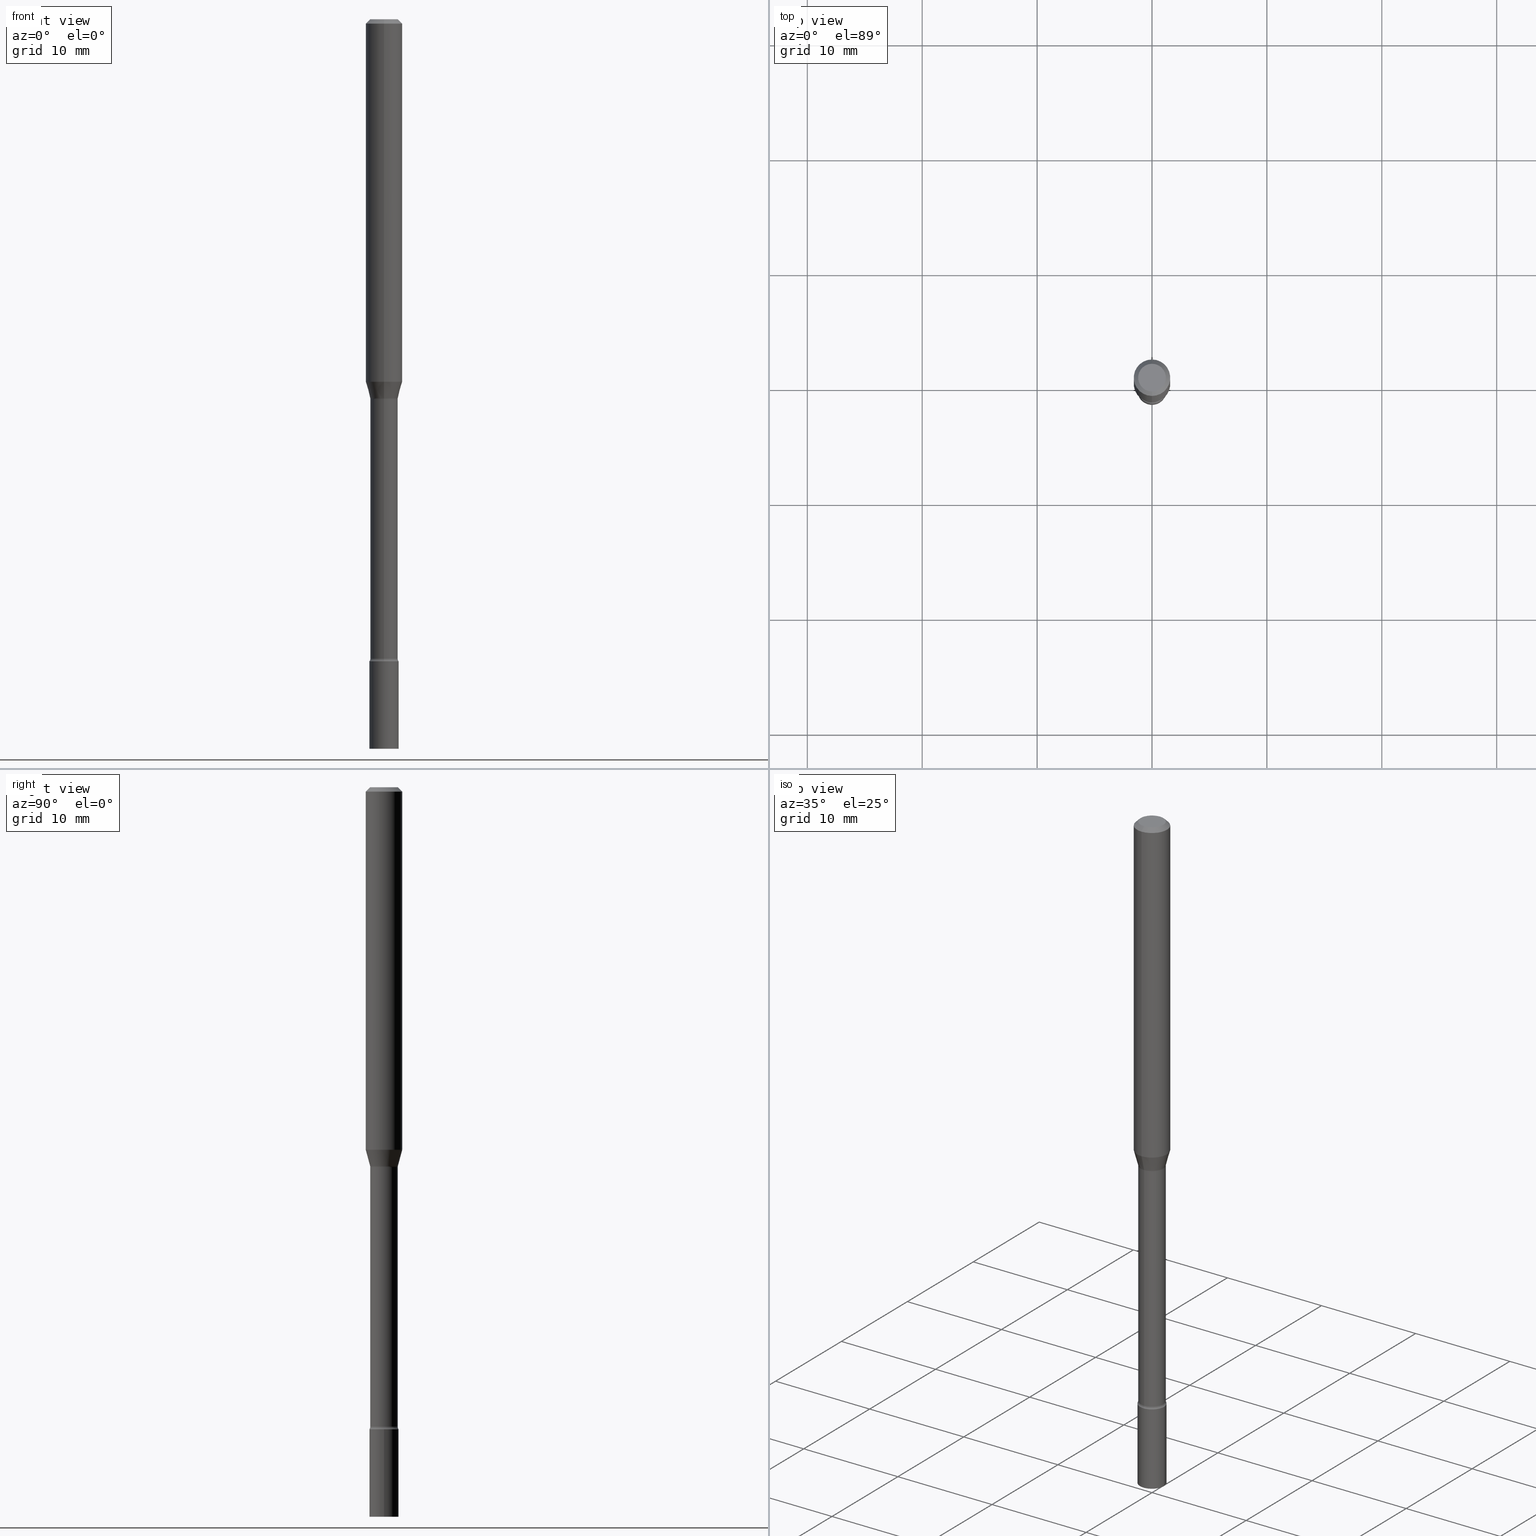
[diagram: canonical four-view strip — front | top / right | iso, engineering-drawing reading convention]
A machine part, canonical four-view strip (front | top / right | iso — engineering-drawing reading convention). The complete STEP part file that produces these views, byte-faithful:
ISO-10303-21;
HEADER;
FILE_DESCRIPTION (( 'STEP AP203' ),
    '1' );
FILE_NAME ('09398.STEP',
    '2024-03-08T23:42:25',
    ( '' ),
    ( '' ),
    'SwSTEP 2.0',
    'SolidWorks 2023',
    '' );
FILE_SCHEMA (( 'CONFIG_CONTROL_DESIGN' ));
ENDSEC;

DATA;
#1 = VECTOR ( 'NONE', #120, 39.37007874015748143 ) ;
#2 = VECTOR ( 'NONE', #169, 39.37007874015748143 ) ;
#3 = ORIENTED_EDGE ( 'NONE', *, *, #341, .F. ) ;
#4 = ADVANCED_FACE ( 'NONE', ( #161 ), #322, .T. ) ;
#5 = DIRECTION ( 'NONE',  ( -2.445406177235951099E-29, 3.491571027062997354E-15, 1.000000000000000000 ) ) ;
#6 = DIRECTION ( 'NONE',  ( -6.982962677686265133E-15, -1.000000000000000000, 5.463695987328526437E-15 ) ) ;
#7 = VERTEX_POINT ( 'NONE', #52 ) ;
#8 = CYLINDRICAL_SURFACE ( 'NONE', #81, 0.04700000000000005562 ) ;
#9 = ADVANCED_BREP_SHAPE_REPRESENTATION ( '09398', ( #237, #404, #298 ), #396 ) ;
#10 = DIRECTION ( 'NONE',  ( -6.982962677686265133E-15, -1.000000000000000000, 5.463695987328526437E-15 ) ) ;
#11 = CARTESIAN_POINT ( 'NONE',  ( 0.000000000000000000, 0.000000000000000000, 0.000000000000000000 ) ) ;
#12 = ADVANCED_FACE ( 'NONE', ( #224 ), #499, .T. ) ;
#13 = VECTOR ( 'NONE', #319, 39.37007874015748143 ) ;
#14 = DIRECTION ( 'NONE',  ( -6.982962677686265922E-15, -1.000000000000000000, 3.491571027062997354E-15 ) ) ;
#15 = UNCERTAINTY_MEASURE_WITH_UNIT (LENGTH_MEASURE( 1.000000000000000082E-05 ), #305, 'distance_accuracy_value', 'NONE');
#16 = CARTESIAN_POINT ( 'NONE',  ( -4.364351673553912750E-16, -0.06250000000000005551, -0.01499999999999981209 ) ) ;
#17 = CARTESIAN_POINT ( 'NONE',  ( 3.183857187869469092E-29, -4.545937445875147629E-15, -1.301974787463811456 ) ) ;
#18 = APPROVAL_ROLE ( '' ) ;
#19 = ORIENTED_EDGE ( 'NONE', *, *, #378, .F. ) ;
#20 = CARTESIAN_POINT ( 'NONE',  ( 3.491481338843744722E-16, 0.04999999999999128059, -2.500000000000000000 ) ) ;
#21 = EDGE_LOOP ( 'NONE', ( #71, #392 ) ) ;
#22 = CARTESIAN_POINT ( 'NONE',  ( 5.380031373607300737E-29, -7.681258945454920203E-15, -2.200000000000000178 ) ) ;
#23 = DIRECTION ( 'NONE',  ( -6.982962677686266711E-15, -1.000000000000000000, 5.812442539711199378E-15 ) ) ;
#24 = AXIS2_PLACEMENT_3D ( 'NONE', #189, #299, #461 ) ;
#25 = APPROVAL_PERSON_ORGANIZATION ( #320, #179, #481 ) ;
#26 = PERSON_AND_ORGANIZATION ( #176, #38 ) ;
#27 = EDGE_CURVE ( 'NONE', #433, #37, #72, .T. ) ;
#28 = ORIENTED_EDGE ( 'NONE', *, *, #268, .F. ) ;
#29 = CARTESIAN_POINT ( 'NONE',  ( 3.174363422494268763E-29, -4.532382169688166542E-15, -1.298092501787273534 ) ) ;
#30 = CARTESIAN_POINT ( 'NONE',  ( -3.281992458512017981E-16, -0.04700000000000777167, -2.190999999999999837 ) ) ;
#31 = ORIENTED_EDGE ( 'NONE', *, *, #474, .F. ) ;
#32 = DIRECTION ( 'NONE',  ( -6.982962677686265922E-15, -1.000000000000000000, 3.491571027062997354E-15 ) ) ;
#33 = APPROVAL_STATUS ( 'not_yet_approved' ) ;
#34 = APPROVAL ( #264, 'UNSPECIFIED' ) ;
#35 = VECTOR ( 'NONE', #423, 39.37007874015748143 ) ;
#36 = PERSON_AND_ORGANIZATION ( #176, #38 ) ;
#37 = VERTEX_POINT ( 'NONE', #181 ) ;
#38 = ORGANIZATION ( 'UNSPECIFIED', 'UNSPECIFIED', '' ) ;
#39 = ORIENTED_EDGE ( 'NONE', *, *, #357, .F. ) ;
#40 = ADVANCED_FACE ( 'NONE', ( #497 ), #106, .T. ) ;
#41 = CONICAL_SURFACE ( 'NONE', #500, 0.06250000000000000000, 0.7853981633974483900 ) ;
#42 = LOCAL_TIME ( 18, 42, 25.00000000000000000, #285 ) ;
#43 = DIRECTION ( 'NONE',  ( -2.445406177235951099E-29, 3.491571027062997354E-15, 1.000000000000000000 ) ) ;
#44 = VERTEX_POINT ( 'NONE', #216 ) ;
#45 = FACE_OUTER_BOUND ( 'NONE', #198, .T. ) ;
#46 = ADVANCED_FACE ( 'NONE', ( #129 ), #217, .F. ) ;
#47 = ORIENTED_EDGE ( 'NONE', *, *, #437, .T. ) ;
#48 = AXIS2_PLACEMENT_3D ( 'NONE', #455, #95, #98 ) ;
#49 = LINE ( 'NONE', #330, #1 ) ;
#50 = VERTEX_POINT ( 'NONE', #171 ) ;
#51 = CARTESIAN_POINT ( 'NONE',  ( 5.380031373607300737E-29, -7.681258945454920203E-15, -2.200000000000000178 ) ) ;
#52 = CARTESIAN_POINT ( 'NONE',  ( 3.840629472727447874E-16, 0.04749999999999999362, -1.947592745229183872E-16 ) ) ;
#53 = CARTESIAN_POINT ( 'NONE',  ( 3.491481338843671260E-16, 0.04999999999999232142, -2.200000000000000178 ) ) ;
#54 = EDGE_CURVE ( 'NONE', #109, #149, #142, .T. ) ;
#55 = DIRECTION ( 'NONE',  ( -2.445406177235951099E-29, 3.491571027062997354E-15, 1.000000000000000000 ) ) ;
#56 = DIRECTION ( 'NONE',  ( -6.982962677686265922E-15, -1.000000000000000000, 3.491571027062997354E-15 ) ) ;
#57 = DIRECTION ( 'NONE',  ( -2.445406177235951099E-29, 3.491571027062997354E-15, 1.000000000000000000 ) ) ;
#58 = AXIS2_PLACEMENT_3D ( 'NONE', #370, #334, #177 ) ;
#59 = CC_DESIGN_APPROVAL ( #34, ( #317 ) ) ;
#60 = CARTESIAN_POINT ( 'NONE',  ( 0.000000000000000000, 0.000000000000000000, 0.000000000000000000 ) ) ;
#61 = APPLICATION_PROTOCOL_DEFINITION ( 'international standard', 'config_control_design', 1994, #354 ) ;
#62 = ORIENTED_EDGE ( 'NONE', *, *, #393, .T. ) ;
#63 = SHAPE_DEFINITION_REPRESENTATION ( #294, #9 ) ;
#64 = CARTESIAN_POINT ( 'NONE',  ( 3.446132268437026374E-16, 0.04699999999999247141, -2.191000000000000281 ) ) ;
#65 = DIRECTION ( 'NONE',  ( 2.445406177235951099E-29, -3.491571027062997354E-15, -1.000000000000000000 ) ) ;
#66 = ORIENTED_EDGE ( 'NONE', *, *, #426, .T. ) ;
#67 = CARTESIAN_POINT ( 'NONE',  ( 6.113672015462842613E-29, -8.728703347107864943E-15, -2.500000000000000000 ) ) ;
#68 = DIRECTION ( 'NONE',  ( -6.982962677686265922E-15, -1.000000000000000000, 3.483106191921935554E-15 ) ) ;
#69 = EDGE_CURVE ( 'NONE', #289, #50, #280, .T. ) ;
#70 = DATE_TIME_ROLE ( 'creation_date' ) ;
#71 = ORIENTED_EDGE ( 'NONE', *, *, #202, .T. ) ;
#72 = CIRCLE ( 'NONE', #131, 0.06250000000000000000 ) ;
#73 = VECTOR ( 'NONE', #438, 39.37007874015748143 ) ;
#74 =( LENGTH_UNIT ( ) NAMED_UNIT ( * ) SI_UNIT ( $, .METRE. ) );
#75 = ORIENTED_EDGE ( 'NONE', *, *, #27, .F. ) ;
#76 = ORIENTED_EDGE ( 'NONE', *, *, #518, .T. ) ;
#77 = ADVANCED_FACE ( 'NONE', ( #451 ), #137, .T. ) ;
#78 = PERSON_AND_ORGANIZATION_ROLE ( 'design_supplier' ) ;
#79 = ORIENTED_EDGE ( 'NONE', *, *, #437, .F. ) ;
#80 = CIRCLE ( 'NONE', #116, 0.05000000000000000278 ) ;
#81 = AXIS2_PLACEMENT_3D ( 'NONE', #89, #403, #447 ) ;
#82 = EDGE_LOOP ( 'NONE', ( #117, #302, #347, #28 ) ) ;
#83 = CIRCLE ( 'NONE', #58, 0.04751111260566398542 ) ;
#84 = ORIENTED_EDGE ( 'NONE', *, *, #465, .T. ) ;
#85 = FACE_OUTER_BOUND ( 'NONE', #253, .T. ) ;
#86 = PRODUCT_RELATED_PRODUCT_CATEGORY ( 'detail', '', ( #506 ) ) ;
#87 = CALENDAR_DATE ( 2024, 8, 3 ) ;
#88 = EDGE_LOOP ( 'NONE', ( #275, #76, #407, #238 ) ) ;
#89 = CARTESIAN_POINT ( 'NONE',  ( 0.000000000000000000, 0.000000000000000000, 0.000000000000000000 ) ) ;
#90 = EDGE_LOOP ( 'NONE', ( #382, #428, #84, #446 ) ) ;
#91 = LINE ( 'NONE', #257, #2 ) ;
#92 = AXIS2_PLACEMENT_3D ( 'NONE', #20, #134, #335 ) ;
#93 = DIRECTION ( 'NONE',  ( -6.982962677686265922E-15, -1.000000000000000000, 4.370956789862821150E-15 ) ) ;
#94 = CIRCLE ( 'NONE', #440, 0.01500000000000002720 ) ;
#95 = DIRECTION ( 'NONE',  ( -2.445406177235951099E-29, 3.491571027062997354E-15, 1.000000000000000000 ) ) ;
#96 = ADVANCED_FACE ( 'NONE', ( #494 ), #427, .F. ) ;
#97 = CARTESIAN_POINT ( 'NONE',  ( 5.357884934323970579E-29, -7.650032120295029046E-15, -2.191000000000000281 ) ) ;
#98 = DIRECTION ( 'NONE',  ( -6.982962677686265922E-15, -1.000000000000000000, 3.491571027062997354E-15 ) ) ;
#99 = PERSON_AND_ORGANIZATION_ROLE ( 'creator' ) ;
#100 = AXIS2_PLACEMENT_3D ( 'NONE', #348, #236, #505 ) ;
#101 = CARTESIAN_POINT ( 'NONE',  ( 3.037569138878633585E-29, -4.337066167877762204E-15, -1.242153212482682845 ) ) ;
#102 = COORDINATED_UNIVERSAL_TIME_OFFSET ( 5, 0, .BEHIND. ) ;
#103 = ORIENTED_EDGE ( 'NONE', *, *, #418, .F. ) ;
#104 = CARTESIAN_POINT ( 'NONE',  ( 3.183857187869469092E-29, -4.545937445875147629E-15, -1.301974787463811456 ) ) ;
#105 = EDGE_CURVE ( 'NONE', #7, #44, #247, .T. ) ;
#106 = CYLINDRICAL_SURFACE ( 'NONE', #467, 0.04700000000000005562 ) ;
#107 = VERTEX_POINT ( 'NONE', #227 ) ;
#108 = FACE_OUTER_BOUND ( 'NONE', #124, .T. ) ;
#109 = VERTEX_POINT ( 'NONE', #453 ) ;
#110 = CARTESIAN_POINT ( 'NONE',  ( 3.183938729182273846E-29, -4.545820674074168441E-15, -1.301974787463811456 ) ) ;
#111 = AXIS2_PLACEMENT_3D ( 'NONE', #458, #175, #266 ) ;
#112 = AXIS2_PLACEMENT_3D ( 'NONE', #22, #196, #344 ) ;
#113 = ADVANCED_FACE ( 'NONE', ( #413 ), #419, .T. ) ;
#114 = ORIENTED_EDGE ( 'NONE', *, *, #220, .F. ) ;
#115 = VERTEX_POINT ( 'NONE', #64 ) ;
#116 = AXIS2_PLACEMENT_3D ( 'NONE', #51, #420, #401 ) ;
#117 = ORIENTED_EDGE ( 'NONE', *, *, #393, .F. ) ;
#118 = EDGE_CURVE ( 'NONE', #168, #424, #270, .T. ) ;
#119 = CYLINDRICAL_SURFACE ( 'NONE', #364, 0.05000000000000000278 ) ;
#120 = DIRECTION ( 'NONE',  ( -2.445406177235951099E-29, 3.491571027062997354E-15, 1.000000000000000000 ) ) ;
#121 = AXIS2_PLACEMENT_3D ( 'NONE', #221, #462, #376 ) ;
#122 = CC_DESIGN_PERSON_AND_ORGANIZATION_ASSIGNMENT ( #456, #99, ( #399 ) ) ;
#123 = AXIS2_PLACEMENT_3D ( 'NONE', #29, #353, #303 ) ;
#124 = EDGE_LOOP ( 'NONE', ( #3, #31, #66, #167 ) ) ;
#125 = DIRECTION ( 'NONE',  ( -2.445406177235951099E-29, 3.491571027062997354E-15, 1.000000000000000000 ) ) ;
#126 = ORIENTED_EDGE ( 'NONE', *, *, #245, .F. ) ;
#127 = DIRECTION ( 'NONE',  ( 1.000000000000000000, -7.105427357601001070E-15, 4.926316606905995483E-29 ) ) ;
#128 = CARTESIAN_POINT ( 'NONE',  ( -0.05000000000000000278, -7.849709778401342953E-15, -2.200000000000000178 ) ) ;
#129 = FACE_OUTER_BOUND ( 'NONE', #325, .T. ) ;
#130 = FACE_OUTER_BOUND ( 'NONE', #187, .T. ) ;
#131 = AXIS2_PLACEMENT_3D ( 'NONE', #101, #377, #371 ) ;
#132 = CARTESIAN_POINT ( 'NONE',  ( 3.668109265853933778E-31, -5.237356540594506706E-17, -0.01500000000000003067 ) ) ;
#133 = AXIS2_PLACEMENT_3D ( 'NONE', #157, #318, #246 ) ;
#134 = DIRECTION ( 'NONE',  ( 2.438088387897960049E-29, -3.491481338843145188E-15, -1.000000000000000000 ) ) ;
#135 = DIRECTION ( 'NONE',  ( -2.445468806185136597E-29, 3.491481338843145583E-15, 1.000000000000000000 ) ) ;
#136 = FACE_OUTER_BOUND ( 'NONE', #210, .T. ) ;
#137 = PLANE ( 'NONE',  #92 ) ;
#138 = CARTESIAN_POINT ( 'NONE',  ( 6.113672015462842613E-29, -8.728703347107864943E-15, -2.500000000000000000 ) ) ;
#139 = APPROVAL_DATE_TIME ( #501, #309 ) ;
#140 = AXIS2_PLACEMENT_3D ( 'NONE', #249, #200, #199 ) ;
#141 = APPROVAL_PERSON_ORGANIZATION ( #26, #34, #18 ) ;
#142 = LINE ( 'NONE', #491, #405 ) ;
#143 = CARTESIAN_POINT ( 'NONE',  ( 3.316907271900976096E-16, 0.04749999999999999362, -1.803044491542054045E-16 ) ) ;
#144 = VERTEX_POINT ( 'NONE', #178 ) ;
#145 = LINE ( 'NONE', #269, #276 ) ;
#146 = ORIENTED_EDGE ( 'NONE', *, *, #465, .F. ) ;
#147 = EDGE_CURVE ( 'NONE', #44, #289, #185, .T. ) ;
#148 = PERSON_AND_ORGANIZATION_ROLE ( 'design_owner' ) ;
#149 = VERTEX_POINT ( 'NONE', #128 ) ;
#150 = CIRCLE ( 'NONE', #271, 0.06250000000000000000 ) ;
#151 = APPLICATION_PROTOCOL_DEFINITION ( 'international standard', 'config_control_design', 1994, #432 ) ;
#152 = EDGE_LOOP ( 'NONE', ( #154, #250, #194, #126 ) ) ;
#153 = DIRECTION ( 'NONE',  ( -6.982962677686266711E-15, -1.000000000000000000, 3.491571027062997354E-15 ) ) ;
#154 = ORIENTED_EDGE ( 'NONE', *, *, #518, .F. ) ;
#155 = EDGE_CURVE ( 'NONE', #512, #168, #49, .T. ) ;
#156 = AXIS2_PLACEMENT_3D ( 'NONE', #53, #324, #56 ) ;
#157 = CARTESIAN_POINT ( 'NONE',  ( 0.000000000000000000, 0.000000000000000000, 0.000000000000000000 ) ) ;
#158 = COORDINATED_UNIVERSAL_TIME_OFFSET ( 5, 0, .BEHIND. ) ;
#159 = CARTESIAN_POINT ( 'NONE',  ( 4.405364961712938637E-16, 0.06199999999999545458, -1.301974787463811678 ) ) ;
#160 = EDGE_CURVE ( 'NONE', #415, #37, #279, .T. ) ;
#161 = FACE_OUTER_BOUND ( 'NONE', #152, .T. ) ;
#162 = AXIS2_PLACEMENT_3D ( 'NONE', #300, #332, #68 ) ;
#163 = TOROIDAL_SURFACE ( 'NONE', #414, 0.06199999999999999956, 0.01500000000000002373 ) ;
#164 = DIRECTION ( 'NONE',  ( -2.445468806185136877E-29, 3.491481338843145188E-15, 1.000000000000000000 ) ) ;
#165 = LOCAL_TIME ( 18, 42, 25.00000000000000000, #180 ) ;
#166 = APPROVAL_STATUS ( 'not_yet_approved' ) ;
#167 = ORIENTED_EDGE ( 'NONE', *, *, #118, .T. ) ;
#168 = VERTEX_POINT ( 'NONE', #244 ) ;
#169 = DIRECTION ( 'NONE',  ( -1.807323732225327378E-15, -0.2588190451025177974, 0.9659258262890690894 ) ) ;
#170 = CARTESIAN_POINT ( 'NONE',  ( 5.379893589919092306E-29, -7.681456259538595126E-15, -2.200000000000000178 ) ) ;
#171 = CARTESIAN_POINT ( 'NONE',  ( 4.440892098500930859E-16, 0.06249999999999993755, -0.01500000000000024751 ) ) ;
#172 = CARTESIAN_POINT ( 'NONE',  ( 5.379893589919092306E-29, -7.681456259538595126E-15, -2.200000000000000178 ) ) ;
#173 = CYLINDRICAL_SURFACE ( 'NONE', #383, 0.05000000000000000278 ) ;
#174 = TOROIDAL_SURFACE ( 'NONE', #140, 0.06200000000000011752, 0.01499999999999999771 ) ;
#175 = DIRECTION ( 'NONE',  ( -2.445406177235951099E-29, 3.491571027062997354E-15, 1.000000000000000000 ) ) ;
#176 = PERSON ( 'UNSPECIFIED', 'UNSPECIFIED', 'UNSPECIFIED', ('UNSPECIFIED'), ('UNSPECIFIED'), ('UNSPECIFIED') ) ;
#177 = DIRECTION ( 'NONE',  ( -6.982962677686265133E-15, -1.000000000000000000, 5.749913744050247464E-15 ) ) ;
#178 = CARTESIAN_POINT ( 'NONE',  ( 3.552713678801038045E-16, 0.04999999999999231448, -2.200000000000000178 ) ) ;
#179 = APPROVAL ( #166, 'UNSPECIFIED' ) ;
#180 = COORDINATED_UNIVERSAL_TIME_OFFSET ( 5, 0, .BEHIND. ) ;
#181 = CARTESIAN_POINT ( 'NONE',  ( 4.440892098500930859E-16, 0.06249999999999569789, -1.242153212482683067 ) ) ;
#182 = EDGE_LOOP ( 'NONE', ( #442, #223, #483, #311 ) ) ;
#183 = DIRECTION ( 'NONE',  ( -2.445406177235951099E-29, 3.491571027062997354E-15, 1.000000000000000000 ) ) ;
#184 = CONICAL_SURFACE ( 'NONE', #450, 0.06250000000000000000, 0.7853981633974483900 ) ;
#185 = LINE ( 'NONE', #337, #35 ) ;
#186 = CALENDAR_DATE ( 2024, 8, 3 ) ;
#187 = EDGE_LOOP ( 'NONE', ( #79, #365 ) ) ;
#188 = EDGE_CURVE ( 'NONE', #149, #107, #80, .T. ) ;
#189 = CARTESIAN_POINT ( 'NONE',  ( 3.668109265853933778E-31, -5.237356540594506706E-17, -0.01500000000000003067 ) ) ;
#190 = ORIENTED_EDGE ( 'NONE', *, *, #211, .F. ) ;
#191 = PERSON_AND_ORGANIZATION ( #176, #38 ) ;
#192 = ORIENTED_EDGE ( 'NONE', *, *, #211, .T. ) ;
#193 = CIRCLE ( 'NONE', #479, 0.05000000000000000278 ) ;
#194 = ORIENTED_EDGE ( 'NONE', *, *, #369, .T. ) ;
#195 = CARTESIAN_POINT ( 'NONE',  ( 7.069583849503552503E-46, -1.009400989173072016E-31, -2.890965073742604569E-17 ) ) ;
#196 = DIRECTION ( 'NONE',  ( -2.445468806185136597E-29, 3.491481338843145583E-15, 1.000000000000000000 ) ) ;
#197 = ADVANCED_FACE ( 'NONE', ( #510 ), #119, .T. ) ;
#198 = EDGE_LOOP ( 'NONE', ( #388, #62, #443, #368 ) ) ;
#199 = DIRECTION ( 'NONE',  ( -6.982962677686265922E-15, -1.000000000000000000, 3.491571027062997354E-15 ) ) ;
#200 = DIRECTION ( 'NONE',  ( -2.445406177235951099E-29, 3.491571027062997354E-15, 1.000000000000000000 ) ) ;
#201 = AXIS2_PLACEMENT_3D ( 'NONE', #67, #379, #466 ) ;
#202 = EDGE_CURVE ( 'NONE', #107, #149, #229, .T. ) ;
#203 = SECURITY_CLASSIFICATION_LEVEL ( 'unclassified' ) ;
#204 = LINE ( 'NONE', #390, #13 ) ;
#205 = DATE_TIME_ROLE ( 'classification_date' ) ;
#206 = ORIENTED_EDGE ( 'NONE', *, *, #478, .T. ) ;
#207 = ORIENTED_EDGE ( 'NONE', *, *, #160, .T. ) ;
#208 = AXIS2_PLACEMENT_3D ( 'NONE', #287, #251, #209 ) ;
#209 = DIRECTION ( 'NONE',  ( -6.982962677686265133E-15, -1.000000000000000000, 5.749913744050247464E-15 ) ) ;
#210 = EDGE_LOOP ( 'NONE', ( #338, #282, #242, #312 ) ) ;
#211 = EDGE_CURVE ( 'NONE', #228, #109, #290, .T. ) ;
#212 = CARTESIAN_POINT ( 'NONE',  ( -3.491481338842594958E-16, -0.05000000000000767719, -2.199999999999999734 ) ) ;
#213 = DIRECTION ( 'NONE',  ( 6.982962677686265922E-15, 1.000000000000000000, -3.483106191921935554E-15 ) ) ;
#214 = CARTESIAN_POINT ( 'NONE',  ( 3.174363422494268763E-29, -4.532382169688166542E-15, -1.298092501787273534 ) ) ;
#215 = DIRECTION ( 'NONE',  ( -6.982962677686265133E-15, -1.000000000000000000, 5.812442539711182812E-15 ) ) ;
#216 = CARTESIAN_POINT ( 'NONE',  ( -3.773273898774340269E-16, -0.04749999999999999362, 1.369399730480663328E-16 ) ) ;
#217 = TOROIDAL_SURFACE ( 'NONE', #111, 0.06199999999999999956, 0.01500000000000002373 ) ;
#218 = CIRCLE ( 'NONE', #395, 0.04700000000000012501 ) ;
#219 = CC_DESIGN_DATE_AND_TIME_ASSIGNMENT ( #477, #205, ( #272 ) ) ;
#220 = EDGE_CURVE ( 'NONE', #415, #267, #406, .T. ) ;
#221 = CARTESIAN_POINT ( 'NONE',  ( 5.380031373607300737E-29, -7.681258945454920203E-15, -2.200000000000000178 ) ) ;
#222 = DATE_AND_TIME ( #231, #471 ) ;
#223 = ORIENTED_EDGE ( 'NONE', *, *, #386, .T. ) ;
#224 = FACE_OUTER_BOUND ( 'NONE', #90, .T. ) ;
#225 = DIRECTION ( 'NONE',  ( -2.445406177235951099E-29, 3.491571027062997354E-15, 1.000000000000000000 ) ) ;
#226 = EDGE_LOOP ( 'NONE', ( #190, #103 ) ) ;
#227 = CARTESIAN_POINT ( 'NONE',  ( 0.05000000000000000278, -8.030407079339233538E-15, -2.200000000000000178 ) ) ;
#228 = VERTEX_POINT ( 'NONE', #514 ) ;
#229 = CIRCLE ( 'NONE', #112, 0.05000000000000000278 ) ;
#230 = CIRCLE ( 'NONE', #429, 0.01499999999999999424 ) ;
#231 = CALENDAR_DATE ( 2024, 8, 3 ) ;
#232 = EDGE_LOOP ( 'NONE', ( #402, #39, #362, #47 ) ) ;
#233 = DIRECTION ( 'NONE',  ( -2.445468806185136597E-29, 3.491481338843145583E-15, 1.000000000000000000 ) ) ;
#234 = CARTESIAN_POINT ( 'NONE',  ( -3.317683261006693414E-16, -0.04751111260566851652, -1.298092501787273090 ) ) ;
#235 = MECHANICAL_CONTEXT ( 'NONE', #354, 'mechanical' ) ;
#236 = DIRECTION ( 'NONE',  ( -1.000000000000000000, 6.982962677686265922E-15, -4.883557194083112340E-29 ) ) ;
#237 = MANIFOLD_SOLID_BREP ( 'Body-Move/Copy2[1]', #389 ) ;
#238 = ORIENTED_EDGE ( 'NONE', *, *, #369, .F. ) ;
#239 = AXIS2_PLACEMENT_3D ( 'NONE', #17, #263, #23 ) ;
#240 = CC_DESIGN_DATE_AND_TIME_ASSIGNMENT ( #222, #70, ( #399 ) ) ;
#241 = CIRCLE ( 'NONE', #281, 0.05000000000000000278 ) ;
#242 = ORIENTED_EDGE ( 'NONE', *, *, #349, .T. ) ;
#243 = DIRECTION ( 'NONE',  ( 1.000000000000000000, -7.105427357601001070E-15, 4.926316606905995483E-29 ) ) ;
#244 = CARTESIAN_POINT ( 'NONE',  ( -3.281992458512226536E-16, -0.04700000000000453815, -1.301974787463811012 ) ) ;
#245 = EDGE_CURVE ( 'NONE', #50, #289, #490, .T. ) ;
#246 = DIRECTION ( 'NONE',  ( -6.982962677686265922E-15, -1.000000000000000000, 3.491571027062997354E-15 ) ) ;
#247 = CIRCLE ( 'NONE', #351, 0.04749999999999999362 ) ;
#248 = CIRCLE ( 'NONE', #316, 0.01500000000000002720 ) ;
#249 = CARTESIAN_POINT ( 'NONE',  ( 5.358022154351634795E-29, -7.649835613405333139E-15, -2.191000000000000281 ) ) ;
#250 = ORIENTED_EDGE ( 'NONE', *, *, #304, .T. ) ;
#251 = DIRECTION ( 'NONE',  ( -2.445406177235951099E-29, 3.491571027062997354E-15, 1.000000000000000000 ) ) ;
#252 = PERSON_AND_ORGANIZATION_ROLE ( 'creator' ) ;
#253 = EDGE_LOOP ( 'NONE', ( #313, #207, #75, #146 ) ) ;
#254 = DIRECTION ( 'NONE',  ( -2.445468806185136597E-29, 3.491481338843145583E-15, 1.000000000000000000 ) ) ;
#255 = EDGE_CURVE ( 'NONE', #424, #168, #333, .T. ) ;
#256 = ORIENTED_EDGE ( 'NONE', *, *, #255, .T. ) ;
#257 = CARTESIAN_POINT ( 'NONE',  ( -3.317683261006693414E-16, -0.04751111260566851652, -1.298092501787273090 ) ) ;
#258 = CARTESIAN_POINT ( 'NONE',  ( 7.069583849503552503E-46, -1.009400989173072016E-31, -2.890965073742604569E-17 ) ) ;
#259 = DIRECTION ( 'NONE',  ( 1.000000000000000000, -6.982962677686274599E-15, 0.000000000000000000 ) ) ;
#260 = ADVANCED_FACE ( 'NONE', ( #108 ), #163, .F. ) ;
#261 = CIRCLE ( 'NONE', #321, 0.04749999999999999362 ) ;
#262 = CC_DESIGN_SECURITY_CLASSIFICATION ( #272, ( #317 ) ) ;
#263 = DIRECTION ( 'NONE',  ( -2.445406177235951099E-29, 3.491571027062997354E-15, 1.000000000000000000 ) ) ;
#264 = APPROVAL_STATUS ( 'not_yet_approved' ) ;
#265 = ORIENTED_EDGE ( 'NONE', *, *, #147, .T. ) ;
#266 = DIRECTION ( 'NONE',  ( -6.982962677686265922E-15, -1.000000000000000000, 3.491571027062997354E-15 ) ) ;
#267 = VERTEX_POINT ( 'NONE', #234 ) ;
#268 = EDGE_CURVE ( 'NONE', #512, #422, #358, .T. ) ;
#269 = CARTESIAN_POINT ( 'NONE',  ( 4.440892098500625669E-16, 0.06250000000000000000, -2.182231891914373347E-16 ) ) ;
#270 = CIRCLE ( 'NONE', #239, 0.04699999999999999317 ) ;
#271 = AXIS2_PLACEMENT_3D ( 'NONE', #488, #485, #93 ) ;
#272 = SECURITY_CLASSIFICATION ( '', '', #203 ) ;
#273 = ORIENTED_EDGE ( 'NONE', *, *, #426, .F. ) ;
#274 = CC_DESIGN_PERSON_AND_ORGANIZATION_ASSIGNMENT ( #352, #511, ( #272 ) ) ;
#275 = ORIENTED_EDGE ( 'NONE', *, *, #27, .T. ) ;
#276 = VECTOR ( 'NONE', #225, 39.37007874015748143 ) ;
#277 = ADVANCED_FACE ( 'NONE', ( #308 ), #173, .T. ) ;
#278 = CARTESIAN_POINT ( 'NONE',  ( 4.364351673553919652E-16, 0.06249999999999995143, -0.01500000000000024751 ) ) ;
#279 = LINE ( 'NONE', #520, #297 ) ;
#280 = CIRCLE ( 'NONE', #162, 0.06250000000000000000 ) ;
#281 = AXIS2_PLACEMENT_3D ( 'NONE', #172, #5, #10 ) ;
#282 = ORIENTED_EDGE ( 'NONE', *, *, #105, .F. ) ;
#283 = APPROVAL_PERSON_ORGANIZATION ( #191, #309, #340 ) ;
#284 = DIRECTION ( 'NONE',  ( -6.982962677686265133E-15, -1.000000000000000000, 5.812442539711182812E-15 ) ) ;
#285 = COORDINATED_UNIVERSAL_TIME_OFFSET ( 5, 0, .BEHIND. ) ;
#286 = CARTESIAN_POINT ( 'NONE',  ( 0.000000000000000000, 0.000000000000000000, 0.000000000000000000 ) ) ;
#287 = CARTESIAN_POINT ( 'NONE',  ( 3.174363422494268763E-29, -4.532382169688166542E-15, -1.298092501787273534 ) ) ;
#288 = EDGE_CURVE ( 'NONE', #144, #422, #193, .T. ) ;
#289 = VERTEX_POINT ( 'NONE', #16 ) ;
#290 = CIRCLE ( 'NONE', #201, 0.05000000000000000278 ) ;
#291 = FACE_OUTER_BOUND ( 'NONE', #232, .T. ) ;
#292 = DIRECTION ( 'NONE',  ( -6.982962677686266711E-15, -1.000000000000000000, 3.491571027062997354E-15 ) ) ;
#293 = ADVANCED_FACE ( 'NONE', ( #136 ), #184, .T. ) ;
#294 = PRODUCT_DEFINITION_SHAPE ( 'NONE', 'NONE',  #399 ) ;
#295 = PLANE ( 'NONE',  #156 ) ;
#296 = DIRECTION ( 'NONE',  ( -2.445406177235951099E-29, 3.491571027062997354E-15, 1.000000000000000000 ) ) ;
#297 = VECTOR ( 'NONE', #345, 39.37007874015748854 ) ;
#298 = AXIS2_PLACEMENT_3D ( 'NONE', #425, #460, #431 ) ;
#299 = DIRECTION ( 'NONE',  ( -2.445406177235951099E-29, 3.491571027062997354E-15, 1.000000000000000000 ) ) ;
#300 = CARTESIAN_POINT ( 'NONE',  ( 3.668109265853933778E-31, -5.237356540594506706E-17, -0.01500000000000003067 ) ) ;
#301 =( NAMED_UNIT ( * ) SI_UNIT ( $, .STERADIAN. ) SOLID_ANGLE_UNIT ( ) );
#302 = ORIENTED_EDGE ( 'NONE', *, *, #445, .T. ) ;
#303 = DIRECTION ( 'NONE',  ( -6.982962677686265133E-15, -1.000000000000000000, 5.749913744050247464E-15 ) ) ;
#304 = EDGE_CURVE ( 'NONE', #37, #433, #150, .T. ) ;
#305 =( CONVERSION_BASED_UNIT ( 'INCH', #468 ) LENGTH_UNIT ( ) NAMED_UNIT ( #360 ) );
#306 = ORIENTED_EDGE ( 'NONE', *, *, #349, .F. ) ;
#307 = VECTOR ( 'NONE', #410, 39.37007874015748143 ) ;
#308 = FACE_OUTER_BOUND ( 'NONE', #519, .T. ) ;
#309 = APPROVAL ( #33, 'UNSPECIFIED' ) ;
#310 = ADVANCED_FACE ( 'NONE', ( #448 ), #41, .T. ) ;
#311 = ORIENTED_EDGE ( 'NONE', *, *, #155, .F. ) ;
#312 = ORIENTED_EDGE ( 'NONE', *, *, #245, .T. ) ;
#313 = ORIENTED_EDGE ( 'NONE', *, *, #474, .T. ) ;
#314 = LINE ( 'NONE', #278, #73 ) ;
#315 = AXIS2_PLACEMENT_3D ( 'NONE', #286, #409, #14 ) ;
#316 = AXIS2_PLACEMENT_3D ( 'NONE', #452, #454, #329 ) ;
#317 = PRODUCT_DEFINITION_FORMATION_WITH_SPECIFIED_SOURCE ( 'ANY', '', #506, .NOT_KNOWN. ) ;
#318 = DIRECTION ( 'NONE',  ( -2.445406177235951099E-29, 3.491571027062997354E-15, 1.000000000000000000 ) ) ;
#319 = DIRECTION ( 'NONE',  ( -2.445406177235951099E-29, 3.491571027062997354E-15, 1.000000000000000000 ) ) ;
#320 = PERSON_AND_ORGANIZATION ( #176, #38 ) ;
#321 = AXIS2_PLACEMENT_3D ( 'NONE', #195, #513, #153 ) ;
#322 = CYLINDRICAL_SURFACE ( 'NONE', #315, 0.06250000000000000000 ) ;
#323 = ADVANCED_FACE ( 'NONE', ( #291 ), #174, .F. ) ;
#324 = DIRECTION ( 'NONE',  ( -2.445406177235951099E-29, 3.491571027062997354E-15, 1.000000000000000000 ) ) ;
#325 = EDGE_LOOP ( 'NONE', ( #114, #342, #256, #273 ) ) ;
#326 = CARTESIAN_POINT ( 'NONE',  ( -4.364351673553610517E-16, -0.06250000000000430211, -1.242153212482682623 ) ) ;
#327 = CARTESIAN_POINT ( 'NONE',  ( 3.668109265853933778E-31, -5.237356540594506706E-17, -0.01500000000000003067 ) ) ;
#328 = ORIENTED_EDGE ( 'NONE', *, *, #54, .T. ) ;
#329 = DIRECTION ( 'NONE',  ( -6.982962677686263555E-15, -1.000000000000000000, 0.000000000000000000 ) ) ;
#330 = CARTESIAN_POINT ( 'NONE',  ( -3.281992458512548983E-16, -0.04700000000000005562, 1.641038382719610823E-16 ) ) ;
#331 = ADVANCED_FACE ( 'NONE', ( #516 ), #356, .T. ) ;
#332 = DIRECTION ( 'NONE',  ( -2.445406177235951099E-29, 3.491571027062997354E-15, 1.000000000000000000 ) ) ;
#333 = CIRCLE ( 'NONE', #373, 0.04699999999999999317 ) ;
#334 = DIRECTION ( 'NONE',  ( -2.445406177235951099E-29, 3.491571027062997354E-15, 1.000000000000000000 ) ) ;
#335 = DIRECTION ( 'NONE',  ( -1.000000000000000000, 6.982962677686265922E-15, -4.876176775795935793E-29 ) ) ;
#336 = CARTESIAN_POINT ( 'NONE',  ( 0.05000000000000000278, -3.491481338843133848E-16, 2.438088387897968247E-30 ) ) ;
#337 = CARTESIAN_POINT ( 'NONE',  ( -4.287811248607203282E-16, -0.06250000000000005551, -0.01499999999999981209 ) ) ;
#338 = ORIENTED_EDGE ( 'NONE', *, *, #147, .F. ) ;
#339 = DIRECTION ( 'NONE',  ( -2.445406177235951099E-29, 3.491571027062997354E-15, 1.000000000000000000 ) ) ;
#340 = APPROVAL_ROLE ( '' ) ;
#341 = EDGE_CURVE ( 'NONE', #415, #424, #94, .T. ) ;
#342 = ORIENTED_EDGE ( 'NONE', *, *, #341, .T. ) ;
#343 = CONICAL_SURFACE ( 'NONE', #208, 0.04751111260566398542, 0.2617993877991498519 ) ;
#344 = DIRECTION ( 'NONE',  ( 1.000000000000000000, -6.982962677686274599E-15, 0.000000000000000000 ) ) ;
#345 = DIRECTION ( 'NONE',  ( 1.839019923739597160E-15, 0.2588190451025245142, 0.9659258262890670910 ) ) ;
#346 = APPROVAL_DATE_TIME ( #385, #34 ) ;
#347 = ORIENTED_EDGE ( 'NONE', *, *, #288, .T. ) ;
#348 = CARTESIAN_POINT ( 'NONE',  ( -4.329436860164957593E-16, -0.06200000000000776418, -2.190999999999999837 ) ) ;
#349 = EDGE_CURVE ( 'NONE', #7, #50, #314, .T. ) ;
#350 = COORDINATED_UNIVERSAL_TIME_OFFSET ( 5, 0, .BEHIND. ) ;
#351 = AXIS2_PLACEMENT_3D ( 'NONE', #258, #296, #292 ) ;
#352 = PERSON_AND_ORGANIZATION ( #176, #38 ) ;
#353 = DIRECTION ( 'NONE',  ( -2.445406177235951099E-29, 3.491571027062997354E-15, 1.000000000000000000 ) ) ;
#354 = APPLICATION_CONTEXT ( 'configuration controlled 3d designs of mechanical parts and assemblies' ) ;
#355 = EDGE_LOOP ( 'NONE', ( #400, #435 ) ) ;
#356 = CYLINDRICAL_SURFACE ( 'NONE', #133, 0.06250000000000000000 ) ;
#357 = EDGE_CURVE ( 'NONE', #512, #115, #218, .T. ) ;
#358 = CIRCLE ( 'NONE', #100, 0.01499999999999999424 ) ;
#359 = CC_DESIGN_APPROVAL ( #309, ( #399 ) ) ;
#360 = DIMENSIONAL_EXPONENTS ( 1.000000000000000000, 0.000000000000000000, 0.000000000000000000, 0.000000000000000000, 0.000000000000000000, 0.000000000000000000, 0.000000000000000000 ) ;
#361 = CC_DESIGN_PERSON_AND_ORGANIZATION_ASSIGNMENT ( #36, #78, ( #317 ) ) ;
#362 = ORIENTED_EDGE ( 'NONE', *, *, #268, .T. ) ;
#363 = LINE ( 'NONE', #336, #517 ) ;
#364 = AXIS2_PLACEMENT_3D ( 'NONE', #489, #233, #384 ) ;
#365 = ORIENTED_EDGE ( 'NONE', *, *, #288, .F. ) ;
#366 = FACE_OUTER_BOUND ( 'NONE', #355, .T. ) ;
#367 = DIRECTION ( 'NONE',  ( 1.000000000000000000, -6.982962677686267499E-15, 4.876176775795936353E-29 ) ) ;
#368 = ORIENTED_EDGE ( 'NONE', *, *, #255, .F. ) ;
#369 = EDGE_CURVE ( 'NONE', #433, #289, #204, .T. ) ;
#370 = CARTESIAN_POINT ( 'NONE',  ( 3.174363422494268763E-29, -4.532382169688166542E-15, -1.298092501787273534 ) ) ;
#371 = DIRECTION ( 'NONE',  ( -6.982962677686265922E-15, -1.000000000000000000, 4.370956789862821150E-15 ) ) ;
#372 = CLOSED_SHELL ( 'NONE', ( #46, #40, #96, #310, #331, #486, #12, #4, #293, #495, #439, #323, #449, #260 ) ) ;
#373 = AXIS2_PLACEMENT_3D ( 'NONE', #104, #183, #464 ) ;
#374 = DIRECTION ( 'NONE',  ( 7.105427357601001859E-15, 1.000000000000000000, 0.000000000000000000 ) ) ;
#375 = APPROVAL_DATE_TIME ( #417, #179 ) ;
#376 = DIRECTION ( 'NONE',  ( 1.000000000000000000, -6.982962677686265922E-15, 4.876176775795935793E-29 ) ) ;
#377 = DIRECTION ( 'NONE',  ( -2.445406177235951099E-29, 3.491571027062997354E-15, 1.000000000000000000 ) ) ;
#378 = EDGE_CURVE ( 'NONE', #44, #7, #261, .T. ) ;
#379 = DIRECTION ( 'NONE',  ( -2.445468806185136597E-29, 3.491481338843145583E-15, 1.000000000000000000 ) ) ;
#380 = DIRECTION ( 'NONE',  ( -2.445468806185136877E-29, 3.491481338843145188E-15, 1.000000000000000000 ) ) ;
#381 = AXIS2_PLACEMENT_3D ( 'NONE', #214, #339, #498 ) ;
#382 = ORIENTED_EDGE ( 'NONE', *, *, #160, .F. ) ;
#383 = AXIS2_PLACEMENT_3D ( 'NONE', #11, #254, #367 ) ;
#384 = DIRECTION ( 'NONE',  ( 1.000000000000000000, -6.982962677686267499E-15, 4.876176775795936353E-29 ) ) ;
#385 = DATE_AND_TIME ( #186, #165 ) ;
#386 = EDGE_CURVE ( 'NONE', #115, #424, #411, .T. ) ;
#387 = PERSON_AND_ORGANIZATION ( #176, #38 ) ;
#388 = ORIENTED_EDGE ( 'NONE', *, *, #386, .F. ) ;
#389 = CLOSED_SHELL ( 'NONE', ( #277, #113, #197, #77 ) ) ;
#390 = CARTESIAN_POINT ( 'NONE',  ( -4.364351673553916201E-16, -0.06250000000000000000, 2.182231891914373347E-16 ) ) ;
#391 = CC_DESIGN_APPROVAL ( #179, ( #272 ) ) ;
#392 = ORIENTED_EDGE ( 'NONE', *, *, #188, .T. ) ;
#393 = EDGE_CURVE ( 'NONE', #115, #512, #459, .T. ) ;
#394 = CARTESIAN_POINT ( 'NONE',  ( 5.357884934323970579E-29, -7.650032120295029046E-15, -2.191000000000000281 ) ) ;
#395 = AXIS2_PLACEMENT_3D ( 'NONE', #394, #43, #284 ) ;
#396 =( GEOMETRIC_REPRESENTATION_CONTEXT ( 3 ) GLOBAL_UNCERTAINTY_ASSIGNED_CONTEXT ( ( #15 ) ) GLOBAL_UNIT_ASSIGNED_CONTEXT ( ( #305, #503, #301 ) ) REPRESENTATION_CONTEXT ( 'NONE', 'WORKASPACE' ) );
#397 = DIRECTION ( 'NONE',  ( 7.105427357601001859E-15, 1.000000000000000000, 0.000000000000000000 ) ) ;
#398 = CC_DESIGN_PERSON_AND_ORGANIZATION_ASSIGNMENT ( #387, #148, ( #506 ) ) ;
#399 = PRODUCT_DEFINITION ( 'UNKNOWN', '', #317, #492 ) ;
#400 = ORIENTED_EDGE ( 'NONE', *, *, #105, .T. ) ;
#401 = DIRECTION ( 'NONE',  ( 1.000000000000000000, -6.982962677686274599E-15, 0.000000000000000000 ) ) ;
#402 = ORIENTED_EDGE ( 'NONE', *, *, #445, .F. ) ;
#403 = DIRECTION ( 'NONE',  ( -2.445406177235951099E-29, 3.491571027062997354E-15, 1.000000000000000000 ) ) ;
#404 = MANIFOLD_SOLID_BREP ( 'Body-Move/Copy2[2]', #372 ) ;
#405 = VECTOR ( 'NONE', #380, 39.37007874015748143 ) ;
#406 = CIRCLE ( 'NONE', #123, 0.04751111260566398542 ) ;
#407 = ORIENTED_EDGE ( 'NONE', *, *, #69, .F. ) ;
#408 = DIRECTION ( 'NONE',  ( 2.445406177235951099E-29, -3.491571027062997354E-15, -1.000000000000000000 ) ) ;
#409 = DIRECTION ( 'NONE',  ( -2.445406177235951099E-29, 3.491571027062997354E-15, 1.000000000000000000 ) ) ;
#410 = DIRECTION ( 'NONE',  ( -2.445406177235951099E-29, 3.491571027062997354E-15, 1.000000000000000000 ) ) ;
#411 = LINE ( 'NONE', #484, #307 ) ;
#412 = DIRECTION ( 'NONE',  ( 6.982962677686265922E-15, 1.000000000000000000, -3.483106191921935554E-15 ) ) ;
#413 = FACE_OUTER_BOUND ( 'NONE', #21, .T. ) ;
#414 = AXIS2_PLACEMENT_3D ( 'NONE', #110, #430, #32 ) ;
#415 = VERTEX_POINT ( 'NONE', #496 ) ;
#416 = DIRECTION ( 'NONE',  ( 2.445406177235951099E-29, -3.491571027062997354E-15, -1.000000000000000000 ) ) ;
#417 = DATE_AND_TIME ( #87, #42 ) ;
#418 = EDGE_CURVE ( 'NONE', #109, #228, #476, .T. ) ;
#419 = PLANE ( 'NONE',  #121 ) ;
#420 = DIRECTION ( 'NONE',  ( -2.445468806185136597E-29, 3.491481338843145583E-15, 1.000000000000000000 ) ) ;
#421 = PLANE ( 'NONE',  #436 ) ;
#422 = VERTEX_POINT ( 'NONE', #212 ) ;
#423 = DIRECTION ( 'NONE',  ( -4.851104656540964275E-15, -0.7071067811865500152, -0.7071067811865450192 ) ) ;
#424 = VERTEX_POINT ( 'NONE', #444 ) ;
#425 = CARTESIAN_POINT ( 'NONE',  ( 0.000000000000000000, 0.000000000000000000, 0.000000000000000000 ) ) ;
#426 = EDGE_CURVE ( 'NONE', #267, #168, #248, .T. ) ;
#427 = TOROIDAL_SURFACE ( 'NONE', #48, 0.06200000000000011752, 0.01499999999999999771 ) ;
#428 = ORIENTED_EDGE ( 'NONE', *, *, #220, .T. ) ;
#429 = AXIS2_PLACEMENT_3D ( 'NONE', #493, #127, #374 ) ;
#430 = DIRECTION ( 'NONE',  ( -2.445406177235951099E-29, 3.491571027062997354E-15, 1.000000000000000000 ) ) ;
#431 = DIRECTION ( 'NONE',  ( 1.000000000000000000, 0.000000000000000000, 0.000000000000000000 ) ) ;
#432 = APPLICATION_CONTEXT ( 'configuration controlled 3d designs of mechanical parts and assemblies' ) ;
#433 = VERTEX_POINT ( 'NONE', #326 ) ;
#434 = EDGE_LOOP ( 'NONE', ( #473, #475, #206, #470 ) ) ;
#435 = ORIENTED_EDGE ( 'NONE', *, *, #378, .T. ) ;
#436 = AXIS2_PLACEMENT_3D ( 'NONE', #143, #65, #463 ) ;
#437 = EDGE_CURVE ( 'NONE', #422, #144, #241, .T. ) ;
#438 = DIRECTION ( 'NONE',  ( 4.937700262164548042E-15, 0.7071067811865451302, -0.7071067811865499042 ) ) ;
#439 = ADVANCED_FACE ( 'NONE', ( #130 ), #295, .F. ) ;
#440 = AXIS2_PLACEMENT_3D ( 'NONE', #159, #243, #397 ) ;
#441 = CALENDAR_DATE ( 2024, 8, 3 ) ;
#442 = ORIENTED_EDGE ( 'NONE', *, *, #357, .T. ) ;
#443 = ORIENTED_EDGE ( 'NONE', *, *, #155, .T. ) ;
#444 = CARTESIAN_POINT ( 'NONE',  ( 3.339550858073009279E-16, 0.04699999999999544820, -1.301974787463811678 ) ) ;
#445 = EDGE_CURVE ( 'NONE', #115, #144, #230, .T. ) ;
#446 = ORIENTED_EDGE ( 'NONE', *, *, #304, .F. ) ;
#447 = DIRECTION ( 'NONE',  ( -6.982962677686265922E-15, -1.000000000000000000, 3.491571027062997749E-15 ) ) ;
#448 = FACE_OUTER_BOUND ( 'NONE', #482, .T. ) ;
#449 = ADVANCED_FACE ( 'NONE', ( #45 ), #8, .T. ) ;
#450 = AXIS2_PLACEMENT_3D ( 'NONE', #327, #416, #412 ) ;
#451 = FACE_OUTER_BOUND ( 'NONE', #226, .T. ) ;
#452 = CARTESIAN_POINT ( 'NONE',  ( -4.329436860165166148E-16, -0.06200000000000453759, -1.301974787463811012 ) ) ;
#453 = CARTESIAN_POINT ( 'NONE',  ( -0.05000000000000000278, -7.849709778401342953E-15, -2.500000000000000000 ) ) ;
#454 = DIRECTION ( 'NONE',  ( -1.000000000000000000, 6.982962677686265922E-15, -4.883557194083112340E-29 ) ) ;
#455 = CARTESIAN_POINT ( 'NONE',  ( 5.358022154351634795E-29, -7.649835613405333139E-15, -2.191000000000000281 ) ) ;
#456 = PERSON_AND_ORGANIZATION ( #176, #38 ) ;
#457 = CC_DESIGN_PERSON_AND_ORGANIZATION_ASSIGNMENT ( #502, #252, ( #317 ) ) ;
#458 = CARTESIAN_POINT ( 'NONE',  ( 3.183938729182273846E-29, -4.545820674074168441E-15, -1.301974787463811456 ) ) ;
#459 = CIRCLE ( 'NONE', #469, 0.04700000000000012501 ) ;
#460 = DIRECTION ( 'NONE',  ( 0.000000000000000000, 0.000000000000000000, 1.000000000000000000 ) ) ;
#461 = DIRECTION ( 'NONE',  ( -6.982962677686265922E-15, -1.000000000000000000, 3.483106191921935554E-15 ) ) ;
#462 = DIRECTION ( 'NONE',  ( -2.438088387897960049E-29, 3.491481338843145188E-15, 1.000000000000000000 ) ) ;
#463 = DIRECTION ( 'NONE',  ( 6.982962677686265922E-15, 1.000000000000000000, -3.491571027062997354E-15 ) ) ;
#464 = DIRECTION ( 'NONE',  ( -6.982962677686266711E-15, -1.000000000000000000, 5.812442539711199378E-15 ) ) ;
#465 = EDGE_CURVE ( 'NONE', #267, #433, #91, .T. ) ;
#466 = DIRECTION ( 'NONE',  ( 1.000000000000000000, -6.982962677686274599E-15, 0.000000000000000000 ) ) ;
#467 = AXIS2_PLACEMENT_3D ( 'NONE', #60, #55, #487 ) ;
#468 = LENGTH_MEASURE_WITH_UNIT ( LENGTH_MEASURE( 0.02539999999999999897 ), #74 );
#469 = AXIS2_PLACEMENT_3D ( 'NONE', #97, #125, #215 ) ;
#470 = ORIENTED_EDGE ( 'NONE', *, *, #188, .F. ) ;
#471 = LOCAL_TIME ( 18, 42, 25.00000000000000000, #102 ) ;
#472 = ORIENTED_EDGE ( 'NONE', *, *, #69, .T. ) ;
#473 = ORIENTED_EDGE ( 'NONE', *, *, #54, .F. ) ;
#474 = EDGE_CURVE ( 'NONE', #267, #415, #83, .T. ) ;
#475 = ORIENTED_EDGE ( 'NONE', *, *, #418, .T. ) ;
#476 = CIRCLE ( 'NONE', #508, 0.05000000000000000278 ) ;
#477 = DATE_AND_TIME ( #441, #480 ) ;
#478 = EDGE_CURVE ( 'NONE', #228, #107, #363, .T. ) ;
#479 = AXIS2_PLACEMENT_3D ( 'NONE', #170, #57, #6 ) ;
#480 = LOCAL_TIME ( 18, 42, 25.00000000000000000, #158 ) ;
#481 = APPROVAL_ROLE ( '' ) ;
#482 = EDGE_LOOP ( 'NONE', ( #19, #265, #472, #306 ) ) ;
#483 = ORIENTED_EDGE ( 'NONE', *, *, #118, .F. ) ;
#484 = CARTESIAN_POINT ( 'NONE',  ( 3.339550858072474333E-16, 0.04700000000000005562, -1.641038382719610823E-16 ) ) ;
#485 = DIRECTION ( 'NONE',  ( -2.445406177235951099E-29, 3.491571027062997354E-15, 1.000000000000000000 ) ) ;
#486 = ADVANCED_FACE ( 'NONE', ( #85 ), #343, .T. ) ;
#487 = DIRECTION ( 'NONE',  ( -6.982962677686265922E-15, -1.000000000000000000, 3.491571027062997749E-15 ) ) ;
#488 = CARTESIAN_POINT ( 'NONE',  ( 3.037569138878633585E-29, -4.337066167877762204E-15, -1.242153212482682845 ) ) ;
#489 = CARTESIAN_POINT ( 'NONE',  ( 0.000000000000000000, 0.000000000000000000, 0.000000000000000000 ) ) ;
#490 = CIRCLE ( 'NONE', #24, 0.06250000000000000000 ) ;
#491 = CARTESIAN_POINT ( 'NONE',  ( -0.05000000000000000278, 3.552713678800501127E-16, -2.459467545127453311E-30 ) ) ;
#492 = DESIGN_CONTEXT ( 'detailed design', #432, 'design' ) ;
#493 = CARTESIAN_POINT ( 'NONE',  ( 4.405364961713164449E-16, 0.06199999999999247086, -2.191000000000000281 ) ) ;
#494 = FACE_OUTER_BOUND ( 'NONE', #82, .T. ) ;
#495 = ADVANCED_FACE ( 'NONE', ( #366 ), #421, .F. ) ;
#496 = CARTESIAN_POINT ( 'NONE',  ( 3.908379845742356712E-16, 0.04751111260565944738, -1.298092501787273756 ) ) ;
#497 = FACE_OUTER_BOUND ( 'NONE', #182, .T. ) ;
#498 = DIRECTION ( 'NONE',  ( -6.982962677686265133E-15, -1.000000000000000000, 5.749913744050247464E-15 ) ) ;
#499 = CONICAL_SURFACE ( 'NONE', #381, 0.04751111260566398542, 0.2617993877991498519 ) ;
#500 = AXIS2_PLACEMENT_3D ( 'NONE', #132, #408, #213 ) ;
#501 = DATE_AND_TIME ( #507, #509 ) ;
#502 = PERSON_AND_ORGANIZATION ( #176, #38 ) ;
#503 =( NAMED_UNIT ( * ) PLANE_ANGLE_UNIT ( ) SI_UNIT ( $, .RADIAN. ) );
#504 = ORIENTED_EDGE ( 'NONE', *, *, #478, .F. ) ;
#505 = DIRECTION ( 'NONE',  ( -6.982962677686266711E-15, -1.000000000000000000, 0.000000000000000000 ) ) ;
#506 = PRODUCT ( '09398', '09398', '', ( #235 ) ) ;
#507 = CALENDAR_DATE ( 2024, 8, 3 ) ;
#508 = AXIS2_PLACEMENT_3D ( 'NONE', #138, #135, #259 ) ;
#509 = LOCAL_TIME ( 18, 42, 25.00000000000000000, #350 ) ;
#510 = FACE_OUTER_BOUND ( 'NONE', #434, .T. ) ;
#511 = PERSON_AND_ORGANIZATION_ROLE ( 'classification_officer' ) ;
#512 = VERTEX_POINT ( 'NONE', #30 ) ;
#513 = DIRECTION ( 'NONE',  ( -2.445406177235951099E-29, 3.491571027062997354E-15, 1.000000000000000000 ) ) ;
#514 = CARTESIAN_POINT ( 'NONE',  ( 0.05000000000000000278, -9.077851480992178278E-15, -2.500000000000000000 ) ) ;
#515 = ORIENTED_EDGE ( 'NONE', *, *, #202, .F. ) ;
#516 = FACE_OUTER_BOUND ( 'NONE', #88, .T. ) ;
#517 = VECTOR ( 'NONE', #164, 39.37007874015748143 ) ;
#518 = EDGE_CURVE ( 'NONE', #37, #50, #145, .T. ) ;
#519 = EDGE_LOOP ( 'NONE', ( #192, #328, #515, #504 ) ) ;
#520 = CARTESIAN_POINT ( 'NONE',  ( 3.375867592983783552E-16, 0.04751111260565944738, -1.298092501787273756 ) ) ;
ENDSEC;
END-ISO-10303-21;
